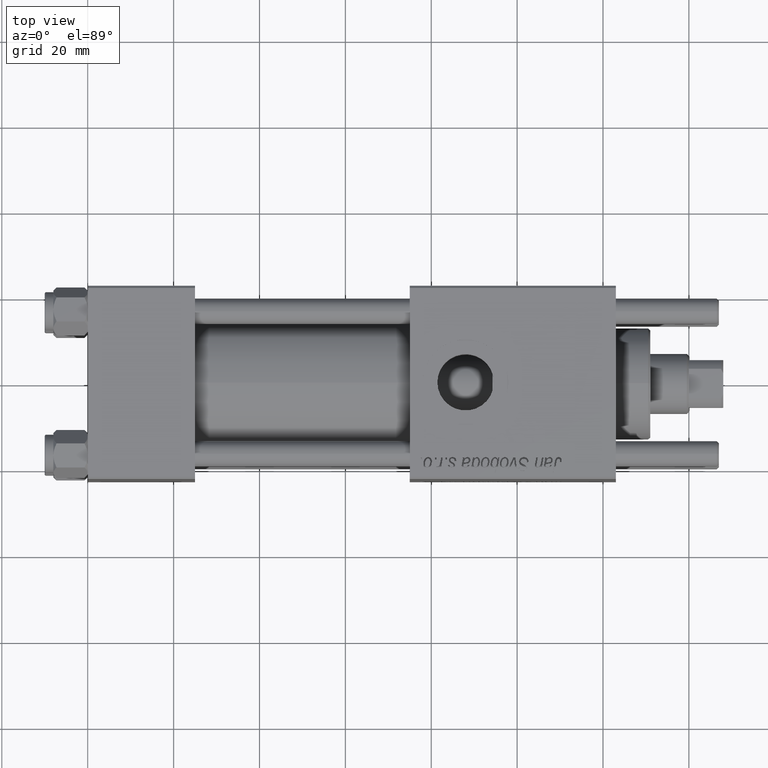
[diagram: clean part render]
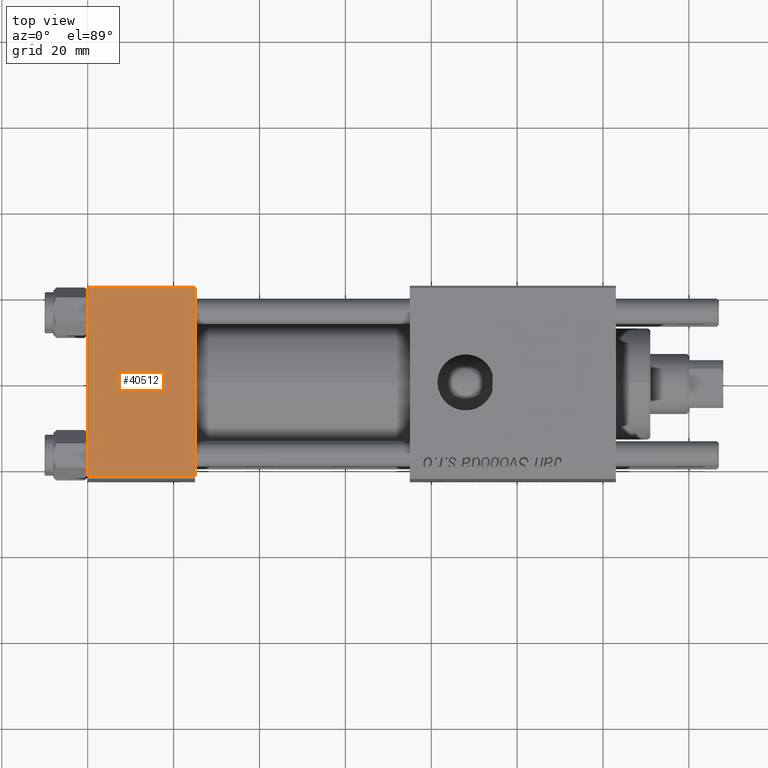
[diagram: same view with one face highlighted and labeled with its STEP entity id]
A machine part, top view. The second image highlights one B-rep face of the part: STEP entity #40512.
In plain terms, the highlighted planar face has unit normal (0, 0, -1).
Its self-contained STEP definition (entity closure, byte-faithful):
#774 = VECTOR ( 'NONE', #27523, 1000.000000000000000 ) ;
#1447 = CARTESIAN_POINT ( 'NONE',  ( 0.000000000000000000, -21.99999999999997868, 22.50000000000000000 ) ) ;
#2570 = ORIENTED_EDGE ( 'NONE', *, *, #7782, .T. ) ;
#2592 = DIRECTION ( 'NONE',  ( -1.000000000000000000, 0.000000000000000000, 0.000000000000000000 ) ) ;
#3222 = EDGE_LOOP ( 'NONE', ( #28259, #6620, #42611, #2570 ) ) ;
#4456 = CARTESIAN_POINT ( 'NONE',  ( 0.000000000000000000, 22.50000000000000000, 22.50000000000000355 ) ) ;
#6620 = ORIENTED_EDGE ( 'NONE', *, *, #29523, .T. ) ;
#7782 = EDGE_CURVE ( 'NONE', #53907, #8921, #15804, .T. ) ;
#8497 = DIRECTION ( 'NONE',  ( 0.000000000000000000, -1.000000000000000000, -7.709882115452476934E-17 ) ) ;
#8921 = VERTEX_POINT ( 'NONE', #9384 ) ;
#9095 = DIRECTION ( 'NONE',  ( 0.000000000000000000, 7.709882115452476934E-17, -1.000000000000000000 ) ) ;
#9375 = FACE_OUTER_BOUND ( 'NONE', #3222, .T. ) ;
#9384 = CARTESIAN_POINT ( 'NONE',  ( 0.000000000000000000, 21.99999999999999289, 22.50000000000000355 ) ) ;
#13222 = VECTOR ( 'NONE', #2592, 1000.000000000000000 ) ;
#13926 = LINE ( 'NONE', #4456, #55052 ) ;
#15804 = LINE ( 'NONE', #42037, #13222 ) ;
#20501 = VERTEX_POINT ( 'NONE', #23799 ) ;
#22061 = LINE ( 'NONE', #22920, #774 ) ;
#22920 = CARTESIAN_POINT ( 'NONE',  ( 25.00000000000000000, 22.50000000000000000, 22.50000000000000355 ) ) ;
#23075 = AXIS2_PLACEMENT_3D ( 'NONE', #48532, #9095, #26915 ) ;
#23799 = CARTESIAN_POINT ( 'NONE',  ( 25.00000000000000000, -21.99999999999997868, 22.50000000000000000 ) ) ;
#26902 = EDGE_CURVE ( 'NONE', #53907, #20501, #22061, .T. ) ;
#26915 = DIRECTION ( 'NONE',  ( 0.000000000000000000, 1.000000000000000000, 7.709882115452476934E-17 ) ) ;
#27132 = EDGE_CURVE ( 'NONE', #8921, #50101, #13926, .T. ) ;
#27240 = CARTESIAN_POINT ( 'NONE',  ( 25.00000000000000000, 21.99999999999999289, 22.50000000000000355 ) ) ;
#27523 = DIRECTION ( 'NONE',  ( 0.000000000000000000, -1.000000000000000000, -7.709882115452476934E-17 ) ) ;
#28259 = ORIENTED_EDGE ( 'NONE', *, *, #27132, .T. ) ;
#29523 = EDGE_CURVE ( 'NONE', #50101, #20501, #34444, .T. ) ;
#33791 = VECTOR ( 'NONE', #35011, 1000.000000000000000 ) ;
#34444 = LINE ( 'NONE', #56920, #33791 ) ;
#35011 = DIRECTION ( 'NONE',  ( 1.000000000000000000, 0.000000000000000000, 0.000000000000000000 ) ) ;
#40512 = ADVANCED_FACE ( 'NONE', ( #9375 ), #54286, .F. ) ;
#42037 = CARTESIAN_POINT ( 'NONE',  ( 0.000000000000000000, 21.99999999999999289, 22.50000000000000355 ) ) ;
#42611 = ORIENTED_EDGE ( 'NONE', *, *, #26902, .F. ) ;
#48532 = CARTESIAN_POINT ( 'NONE',  ( 25.00000000000000000, 22.50000000000000000, 22.50000000000000355 ) ) ;
#50101 = VERTEX_POINT ( 'NONE', #1447 ) ;
#53907 = VERTEX_POINT ( 'NONE', #27240 ) ;
#54286 = PLANE ( 'NONE',  #23075 ) ;
#55052 = VECTOR ( 'NONE', #8497, 1000.000000000000000 ) ;
#56920 = CARTESIAN_POINT ( 'NONE',  ( 25.00000000000000000, -21.99999999999999289, 22.50000000000000000 ) ) ;